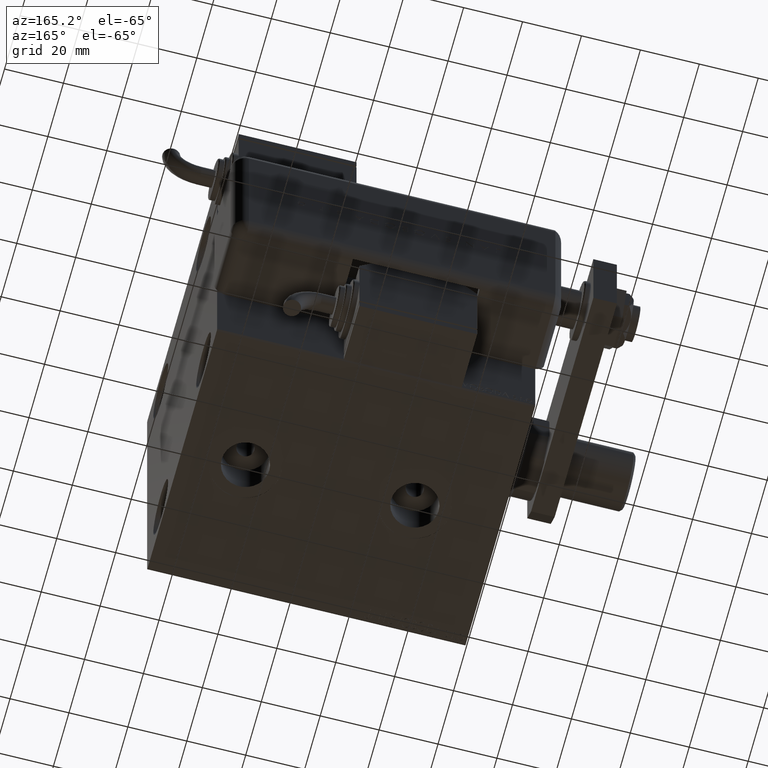
[diagram: clean part render]
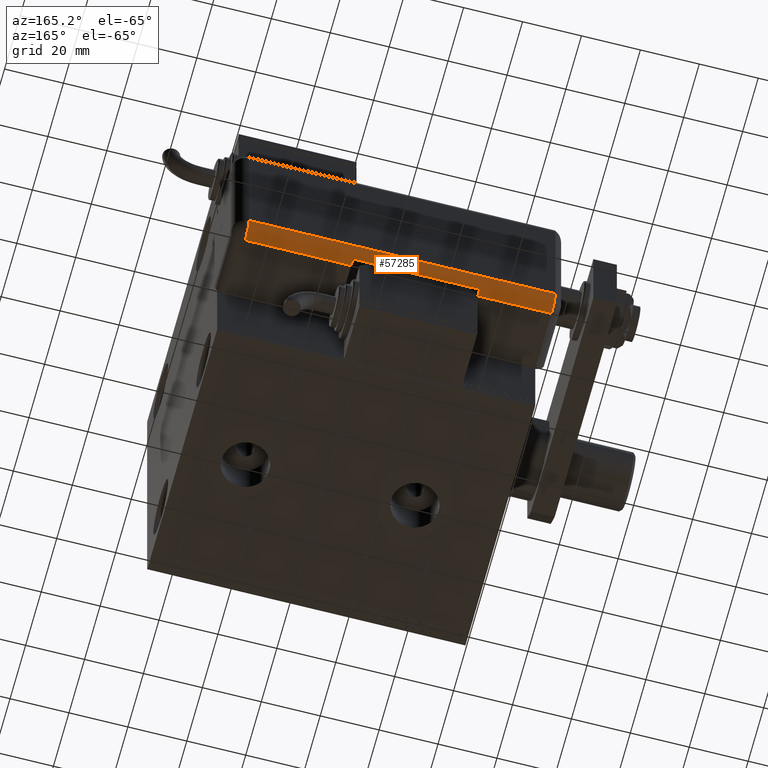
[diagram: same view with one face highlighted and labeled with its STEP entity id]
A machine part, auxiliary view. The second image highlights one B-rep face of the part: STEP entity #57285.
In plain terms, the highlighted cylindrical surface (edge-blend (fillet) strip) has radius 5 mm, axis along (1, -0, -0).
Its self-contained STEP definition (entity closure, byte-faithful):
#7 = EDGE_CURVE ( 'NONE', #89, #50479, #25463, .T. ) ;
#89 = VERTEX_POINT ( 'NONE', #27912 ) ;
#401 = CARTESIAN_POINT ( 'NONE',  ( -28.99999999999999645, 20.79999999999998295, 109.0000000000000000 ) ) ;
#1380 = ORIENTED_EDGE ( 'NONE', *, *, #29208, .F. ) ;
#2139 = DIRECTION ( 'NONE',  ( 0.000000000000000000, 0.000000000000000000, -1.000000000000000000 ) ) ;
#5057 = EDGE_CURVE ( 'NONE', #43249, #56871, #25974, .T. ) ;
#6045 = VERTEX_POINT ( 'NONE', #16966 ) ;
#6497 = CARTESIAN_POINT ( 'NONE',  ( -28.99999999999999645, 20.79999999999998295, 109.0000000000000000 ) ) ;
#6806 = VERTEX_POINT ( 'NONE', #16370 ) ;
#7171 = EDGE_CURVE ( 'NONE', #6045, #59566, #42269, .T. ) ;
#7886 = DIRECTION ( 'NONE',  ( 0.000000000000000000, -0.000000000000000000, -1.000000000000000000 ) ) ;
#8083 = ORIENTED_EDGE ( 'NONE', *, *, #20675, .T. ) ;
#8822 = CARTESIAN_POINT ( 'NONE',  ( -23.99999999999999645, 20.79999999999998295, 41.00000000000000711 ) ) ;
#9123 = DIRECTION ( 'NONE',  ( 0.000000000000000000, 0.000000000000000000, -1.000000000000000000 ) ) ;
#10402 = CIRCLE ( 'NONE', #45182, 5.000000000000000888 ) ;
#11129 = CARTESIAN_POINT ( 'NONE',  ( -28.99999999999999645, 20.79999999999998295, 84.00000000000000000 ) ) ;
#11998 = DIRECTION ( 'NONE',  ( -1.000000000000000000, 0.000000000000000000, 0.000000000000000000 ) ) ;
#13191 = CYLINDRICAL_SURFACE ( 'NONE', #18925, 5.000000000000000888 ) ;
#13493 = FACE_OUTER_BOUND ( 'NONE', #19591, .T. ) ;
#16370 = CARTESIAN_POINT ( 'NONE',  ( -23.99999999999999645, 25.79999999999998295, 5.000000000000004441 ) ) ;
#16489 = VECTOR ( 'NONE', #2139, 1000.000000000000000 ) ;
#16966 = CARTESIAN_POINT ( 'NONE',  ( -28.48998886412872267, 22.99999999999998934, 84.00000000000000000 ) ) ;
#16996 = CIRCLE ( 'NONE', #36825, 5.000000000000000888 ) ;
#18626 = EDGE_CURVE ( 'NONE', #6806, #39964, #55997, .T. ) ;
#18925 = AXIS2_PLACEMENT_3D ( 'NONE', #27796, #9123, #31860 ) ;
#19204 = ORIENTED_EDGE ( 'NONE', *, *, #42213, .F. ) ;
#19591 = EDGE_LOOP ( 'NONE', ( #23524, #44198, #19204, #35627, #1380, #23085, #8083, #47990 ) ) ;
#20675 = EDGE_CURVE ( 'NONE', #6806, #50479, #28667, .T. ) ;
#22522 = DIRECTION ( 'NONE',  ( -1.000000000000000000, 4.163336342344336238E-15, 0.000000000000000000 ) ) ;
#22921 = CARTESIAN_POINT ( 'NONE',  ( -23.99999999999999645, 20.79999999999998295, 5.000000000000004441 ) ) ;
#23085 = ORIENTED_EDGE ( 'NONE', *, *, #18626, .F. ) ;
#23524 = ORIENTED_EDGE ( 'NONE', *, *, #26745, .F. ) ;
#24203 = CARTESIAN_POINT ( 'NONE',  ( -28.48998886412872267, 22.99999999999998934, 109.0000000000000000 ) ) ;
#25463 = LINE ( 'NONE', #6497, #16489 ) ;
#25974 = LINE ( 'NONE', #39683, #56313 ) ;
#26745 = EDGE_CURVE ( 'NONE', #59566, #89, #50670, .T. ) ;
#27796 = CARTESIAN_POINT ( 'NONE',  ( -23.99999999999999645, 20.79999999999998295, 109.0000000000000000 ) ) ;
#27912 = CARTESIAN_POINT ( 'NONE',  ( -28.99999999999999645, 20.79999999999998295, 41.00000000000000711 ) ) ;
#28667 = CIRCLE ( 'NONE', #57543, 5.000000000000000888 ) ;
#29208 = EDGE_CURVE ( 'NONE', #39964, #43249, #16996, .T. ) ;
#29647 = VECTOR ( 'NONE', #51925, 1000.000000000000000 ) ;
#30343 = DIRECTION ( 'NONE',  ( 0.000000000000000000, 0.000000000000000000, -1.000000000000000000 ) ) ;
#31860 = DIRECTION ( 'NONE',  ( -1.000000000000000000, 0.000000000000000000, 0.000000000000000000 ) ) ;
#32933 = CARTESIAN_POINT ( 'NONE',  ( -23.99999999999999645, 25.79999999999998295, 109.0000000000000000 ) ) ;
#35627 = ORIENTED_EDGE ( 'NONE', *, *, #5057, .F. ) ;
#36228 = DIRECTION ( 'NONE',  ( -0.000000000000000000, -0.000000000000000000, 1.000000000000000000 ) ) ;
#36825 = AXIS2_PLACEMENT_3D ( 'NONE', #61062, #44990, #11998 ) ;
#37529 = DIRECTION ( 'NONE',  ( -1.000000000000000000, 0.000000000000000000, 0.000000000000000000 ) ) ;
#38463 = VECTOR ( 'NONE', #56615, 1000.000000000000000 ) ;
#38465 = CARTESIAN_POINT ( 'NONE',  ( -28.99999999999999645, 20.79999999999998295, 5.000000000000004441 ) ) ;
#39683 = CARTESIAN_POINT ( 'NONE',  ( -28.99999999999999645, 20.79999999999998295, 109.0000000000000000 ) ) ;
#39964 = VERTEX_POINT ( 'NONE', #41044 ) ;
#39968 = DIRECTION ( 'NONE',  ( 1.000000000000000000, 0.000000000000000000, 0.000000000000000000 ) ) ;
#41044 = CARTESIAN_POINT ( 'NONE',  ( -23.99999999999999645, 25.79999999999998295, 109.0000000000000000 ) ) ;
#42213 = EDGE_CURVE ( 'NONE', #56871, #6045, #10402, .T. ) ;
#42269 = LINE ( 'NONE', #24203, #38463 ) ;
#43249 = VERTEX_POINT ( 'NONE', #401 ) ;
#43743 = AXIS2_PLACEMENT_3D ( 'NONE', #8822, #36228, #22522 ) ;
#44198 = ORIENTED_EDGE ( 'NONE', *, *, #7171, .F. ) ;
#44990 = DIRECTION ( 'NONE',  ( -0.000000000000000000, -0.000000000000000000, 1.000000000000000000 ) ) ;
#45182 = AXIS2_PLACEMENT_3D ( 'NONE', #45851, #7886, #39968 ) ;
#45851 = CARTESIAN_POINT ( 'NONE',  ( -23.99999999999999645, 20.79999999999998295, 84.00000000000000000 ) ) ;
#47319 = CARTESIAN_POINT ( 'NONE',  ( -28.48998886412872267, 22.99999999999998934, 41.00000000000000711 ) ) ;
#47990 = ORIENTED_EDGE ( 'NONE', *, *, #7, .F. ) ;
#50479 = VERTEX_POINT ( 'NONE', #38465 ) ;
#50670 = CIRCLE ( 'NONE', #43743, 5.000000000000000888 ) ;
#51925 = DIRECTION ( 'NONE',  ( -0.000000000000000000, -0.000000000000000000, 1.000000000000000000 ) ) ;
#55997 = LINE ( 'NONE', #32933, #29647 ) ;
#56313 = VECTOR ( 'NONE', #30343, 1000.000000000000000 ) ;
#56615 = DIRECTION ( 'NONE',  ( 0.000000000000000000, 0.000000000000000000, -1.000000000000000000 ) ) ;
#56871 = VERTEX_POINT ( 'NONE', #11129 ) ;
#57285 = ADVANCED_FACE ( 'NONE', ( #13493 ), #13191, .T. ) ;
#57543 = AXIS2_PLACEMENT_3D ( 'NONE', #22921, #61204, #37529 ) ;
#59566 = VERTEX_POINT ( 'NONE', #47319 ) ;
#61062 = CARTESIAN_POINT ( 'NONE',  ( -23.99999999999999645, 20.79999999999998295, 109.0000000000000000 ) ) ;
#61204 = DIRECTION ( 'NONE',  ( -0.000000000000000000, -0.000000000000000000, 1.000000000000000000 ) ) ;